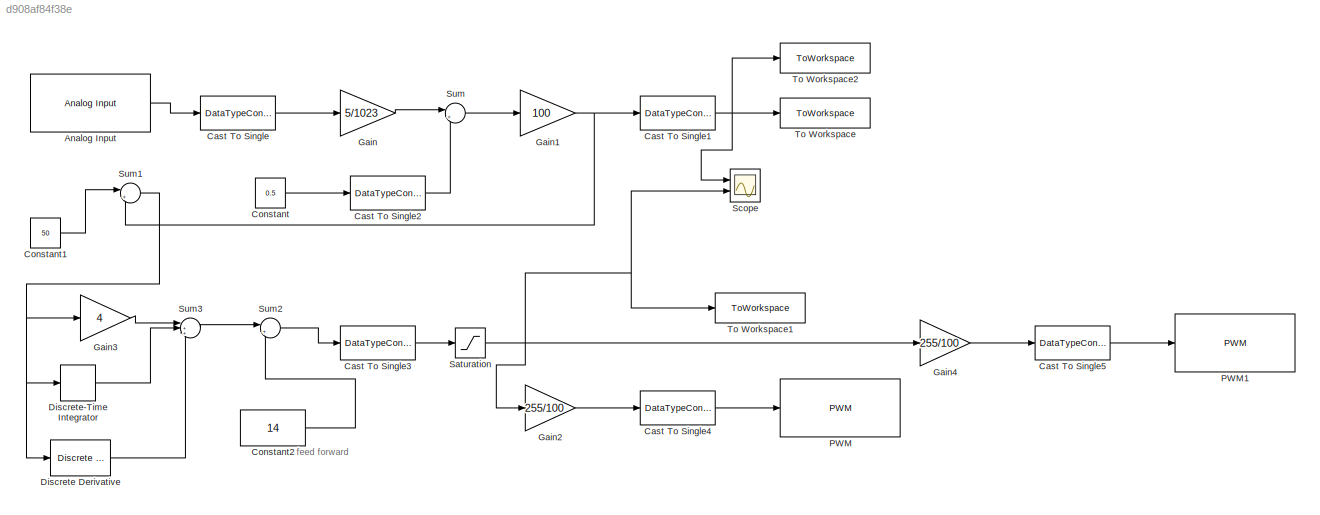
MODEL slx_d908af84f38e
KIND model
CONFIG AbsTol = auto
CONFIG EnableMultiTasking = on
CONFIG FixedStep = 0.5
CONFIG MaxStep = auto
CONFIG MinStep = auto
CONFIG RelTol = 1e-3
CONFIG SampleTimeConstraint = Unconstrained
CONFIG SolverName = ode3
CONFIG StartTime = 0.0
CONFIG StopTime = 400
BLOCK [Reference] Analog Input  REF=arduinolib/Analog Input
  Ports = [0, 1]
  SourceBlock = arduinolib/Analog Input
  SourceProductBaseCode = ARDUINO
  SourceType = Arduino Analog Input
BLOCK [DataTypeConversion] Cast To Single
  OutDataTypeStr = double
  RndMeth = Floor
  SaturateOnIntegerOverflow = off
BLOCK [DataTypeConversion] Cast To Single1
  OutDataTypeStr = single
  RndMeth = Floor
  SaturateOnIntegerOverflow = off
BLOCK [DataTypeConversion] Cast To Single2
  OutDataTypeStr = double
  RndMeth = Floor
  SaturateOnIntegerOverflow = off
BLOCK [DataTypeConversion] Cast To Single3
  OutDataTypeStr = single
  RndMeth = Floor
  SaturateOnIntegerOverflow = off
BLOCK [DataTypeConversion] Cast To Single4
  OutDataTypeStr = uint8
  RndMeth = Floor
  SaturateOnIntegerOverflow = off
BLOCK [DataTypeConversion] Cast To Single5
  OutDataTypeStr = uint8
  RndMeth = Floor
  SaturateOnIntegerOverflow = off
BLOCK [Constant] Constant
  SampleTime = 0.5
  Value = 0.5
BLOCK [Constant] Constant1
  SampleTime = 0.5
  Value = 50
BLOCK [Constant] Constant2
  SampleTime = 0.5
  Value = 14
BLOCK [Reference] Discrete Derivative  REF=simulink/Discrete/Discrete Derivative
  Ports = [1, 1]
  SourceBlock = simulink/Discrete/Discrete Derivative
  SourceProductBaseCode = SL
  SourceType = Discrete Derivative
BLOCK [DiscreteIntegrator] Discrete-Time Integrator
  ICPrevOutput = DiscIntNeverNeededParam
  ICPrevScaledInput = DiscIntNeverNeededParam
  InitialConditionSetting = Auto
  Ports = [1, 1]
  SampleTime = 0.5
  gainval = 0.1
BLOCK [Gain] Gain
  Gain = 5/1023
BLOCK [Gain] Gain1
  Gain = 100
BLOCK [Gain] Gain2
  Gain = 255/100
BLOCK [Gain] Gain3
  Gain = 4
BLOCK [Gain] Gain4
  Gain = 255/100
BLOCK [Reference] PWM  REF=arduinolib/PWM
  Ports = [1]
  SourceBlock = arduinolib/PWM
  SourceProductBaseCode = ARDUINO
  SourceType = Arduino PWM
BLOCK [Reference] PWM1  REF=arduinolib/PWM
  Ports = [1]
  SourceBlock = arduinolib/PWM
  SourceProductBaseCode = ARDUINO
  SourceType = Arduino PWM
BLOCK [Saturate] Saturation
  LowerLimit = 0
  UpperLimit = 100
BLOCK [Scope] Scope
  Floating = off
  NumInputPorts = 2
  Ports = [2]
  ScopeSpecificationString = Simulink.scopes.TimeScopeBlockCfg('CurrentConfiguration', extmgr.ConfigurationSet(extmgr.Configuration('Core','General UI',true),extmgr.Configuration('Core','Source UI',true),extmgr.Configuration('Sources','WiredSimulink',true),extmgr.Configuration('Visuals','Time Domain',true,'SerializedDisplays',{struct('MinYLimReal','12.07844','MaxYLimReal','109.76906','YLabelReal','','MinYLimMag','12.07844','M...<+1429ch>
BLOCK [Sum] Sum
  Inputs = |+-
  Ports = [2, 1]
BLOCK [Sum] Sum1
  Inputs = |+-
  Ports = [2, 1]
BLOCK [Sum] Sum2
  Inputs = |++
  Ports = [2, 1]
BLOCK [Sum] Sum3
  Inputs = |+++
  Ports = [3, 1]
BLOCK [ToWorkspace] To Workspace
  FixptAsFi = on
  MaxDataPoints = inf
  Ports = [1]
  SampleTime = 0.5
  Save2DSignal = 2-D array (concatenate along first dimension)
  VariableName = temp
BLOCK [ToWorkspace] To Workspace1
  FixptAsFi = on
  MaxDataPoints = inf
  Ports = [1]
  SampleTime = 0.5
  Save2DSignal = 2-D array (concatenate along first dimension)
  VariableName = controlsignal
BLOCK [ToWorkspace] To Workspace2
  FixptAsFi = on
  MaxDataPoints = inf
  Ports = [1]
  SampleTime = 0.5
  Save2DSignal = 2-D array (concatenate along first dimension)
  VariableName = temp1
ANNOTATION (root): feed forward
LINE Analog Input:1 -> Cast To Single:1
NET Cast To Single1:1 -> Scope:1, To Workspace2:1, To Workspace:1
LINE Cast To Single2:1 -> Sum:2
LINE Cast To Single3:1 -> Saturation:1
LINE Cast To Single4:1 -> PWM:1
LINE Cast To Single5:1 -> PWM1:1
LINE Cast To Single:1 -> Gain:1
LINE Constant1:1 -> Sum1:1
LINE Constant2:1 -> Sum2:2
LINE Constant:1 -> Cast To Single2:1
LINE Discrete Derivative:1 -> Sum3:3
LINE Discrete-Time Integrator:1 -> Sum3:2
NET Gain1:1 -> Cast To Single1:1, Sum1:2
LINE Gain2:1 -> Cast To Single4:1
LINE Gain3:1 -> Sum3:1
LINE Gain4:1 -> Cast To Single5:1
LINE Gain:1 -> Sum:1
NET Saturation:1 -> Gain2:1, Gain4:1, Scope:2, To Workspace1:1
NET Sum1:1 -> Discrete Derivative:1, Discrete-Time Integrator:1, Gain3:1
LINE Sum2:1 -> Cast To Single3:1
LINE Sum3:1 -> Sum2:1
LINE Sum:1 -> Gain1:1
note: NET lines group one-source signal fan-out (src -> all destinations, sorted); 1:1 wires keep LINE
